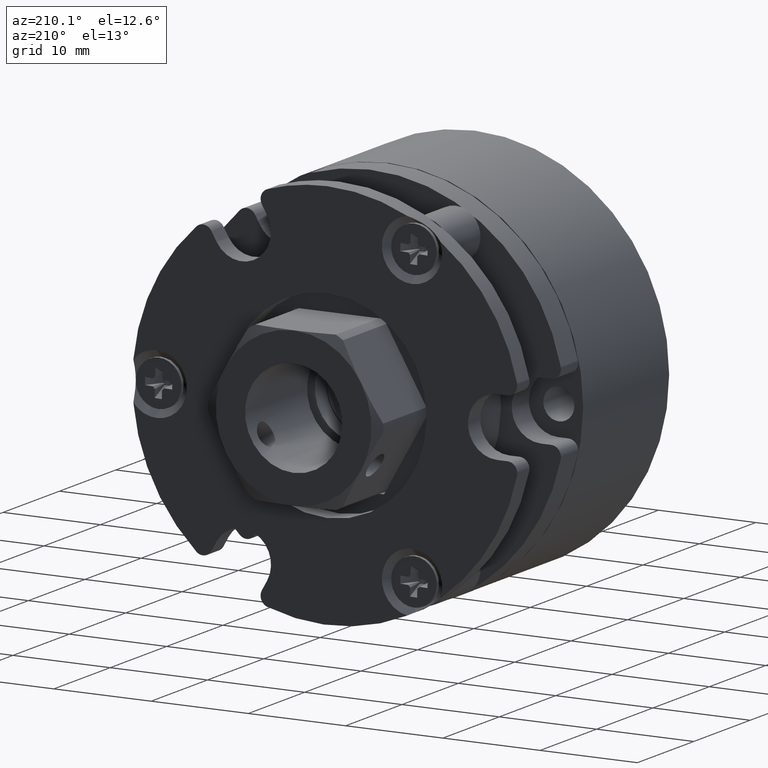
[diagram: clean part render]
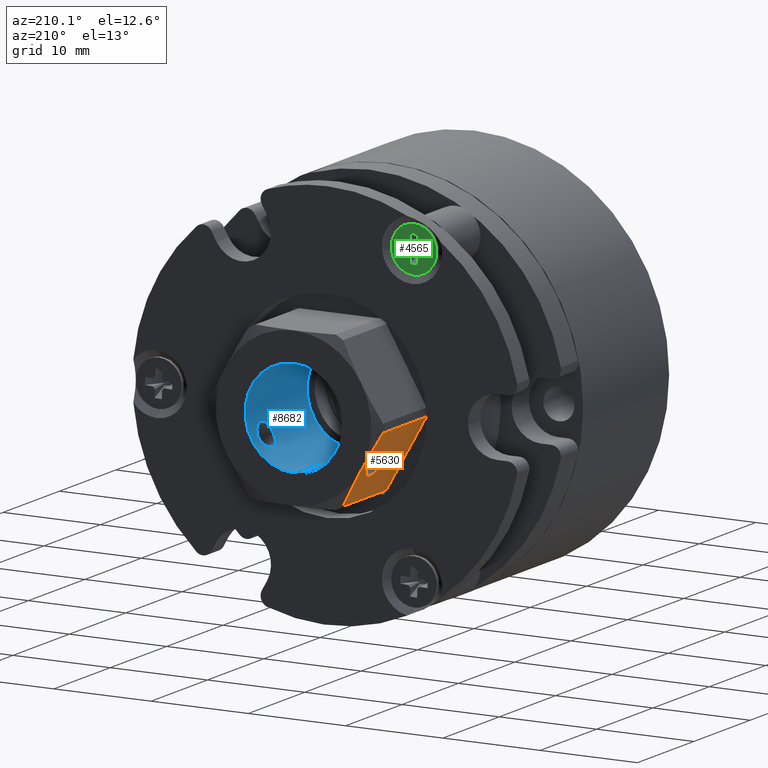
[diagram: same view with three faces highlighted in distinct colors, each labeled with its STEP entity id]
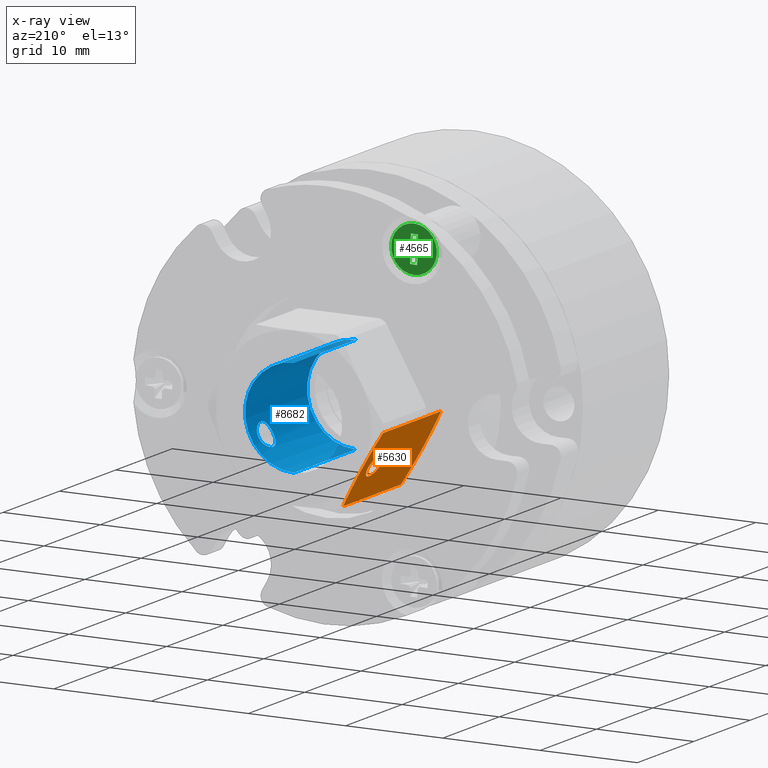
[diagram: x-ray of the same camera — body ghosted, the three highlighted faces saturated]
A machine part, auxiliary view with three faces highlighted in distinct colors.
The next image is the same camera in x-ray (body ghosted, the three faces saturated) — at least one of them is partly hidden behind the body in this view.
Their STEP definitions:

[orange] entity #5630 — the highlighted planar face has unit normal (0.866, -0, 0.5).
#303 = CARTESIAN_POINT ( 'NONE',  ( -7.769732616054021435, -55.03216099891337620, -2.502149111223020306 ) ) ;
#496 = FACE_BOUND ( 'NONE', #5829, .T. ) ;
#529 = VERTEX_POINT ( 'NONE', #4935 ) ;
#665 = CARTESIAN_POINT ( 'NONE',  ( -7.077193387655221102, -55.03216099891337620, -3.701662241044264778 ) ) ;
#679 = VERTEX_POINT ( 'NONE', #8865 ) ;
#725 = B_SPLINE_CURVE_WITH_KNOTS ( 'NONE', 3,
 ( #8380, #9103, #4196, #5598 ),
 .UNSPECIFIED., .F., .F.,
 ( 4, 4 ),
 ( 1.226634733346699349E-18, 0.004139139322544211838 ),
 .UNSPECIFIED. ) ;
#788 = EDGE_CURVE ( 'NONE', #1032, #679, #8196, .T. ) ;
#1032 = VERTEX_POINT ( 'NONE', #3412 ) ;
#1099 = EDGE_CURVE ( 'NONE', #529, #1182, #1279, .T. ) ;
#1166 = AXIS2_PLACEMENT_3D ( 'NONE', #9015, #4708, #4678 ) ;
#1182 = VERTEX_POINT ( 'NONE', #3492 ) ;
#1274 = DIRECTION ( 'NONE',  ( -8.247672735141258433E-17, -1.000000000000000000, -4.761796073821848323E-17 ) ) ;
#1279 = LINE ( 'NONE', #4019, #1513 ) ;
#1377 = CARTESIAN_POINT ( 'NONE',  ( -5.015640574846357502, -65.66819076464719274, -7.272376455315672672 ) ) ;
#1506 = VERTEX_POINT ( 'NONE', #1377 ) ;
#1513 = VECTOR ( 'NONE', #1274, 1000.000000000000000 ) ;
#1602 = EDGE_CURVE ( 'NONE', #4846, #3009, #3332, .T. ) ;
#1813 = ORIENTED_EDGE ( 'NONE', *, *, #3386, .F. ) ;
#1862 = EDGE_CURVE ( 'NONE', #3009, #4846, #6131, .T. ) ;
#1925 = CARTESIAN_POINT ( 'NONE',  ( -7.077193387655221990, -57.53216099891338331, -3.701662241044268331 ) ) ;
#1968 = B_SPLINE_CURVE_WITH_KNOTS ( 'NONE', 3,
 ( #7597, #303, #6204, #6901 ),
 .UNSPECIFIED., .F., .F.,
 ( 4, 4 ),
 ( 1.226634733346699349E-18, 0.004139139322544219644 ),
 .UNSPECIFIED. ) ;
#2170 = ORIENTED_EDGE ( 'NONE', *, *, #788, .F. ) ;
#2359 = EDGE_LOOP ( 'NONE', ( #7875, #2170, #3989, #1813, #3602, #4695 ) ) ;
#2377 = AXIS2_PLACEMENT_3D ( 'NONE', #3401, #2808, #7746 ) ;
#2808 = DIRECTION ( 'NONE',  ( 0.8660254037844339337, -9.523592147643536408E-17, 0.5000000000000083267 ) ) ;
#3009 = VERTEX_POINT ( 'NONE', #7183 ) ;
#3099 = ORIENTED_EDGE ( 'NONE', *, *, #1602, .T. ) ;
#3133 = CARTESIAN_POINT ( 'NONE',  ( -7.077193387655221102, -66.03216099891338331, -3.701662241044273660 ) ) ;
#3332 = CIRCLE ( 'NONE', #8806, 1.249999999999999112 ) ;
#3386 = EDGE_CURVE ( 'NONE', #7182, #1506, #725, .T. ) ;
#3401 = CARTESIAN_POINT ( 'NONE',  ( -7.077193387655221990, -57.53216099891338331, -3.701662241044268331 ) ) ;
#3412 = CARTESIAN_POINT ( 'NONE',  ( -5.015640574846354838, -55.39613123317957388, -7.272376455315672672 ) ) ;
#3492 = CARTESIAN_POINT ( 'NONE',  ( -9.138746200464087366, -65.66819076464719274, -0.1309480267728589664 ) ) ;
#3602 = ORIENTED_EDGE ( 'NONE', *, *, #7571, .F. ) ;
#3854 = CARTESIAN_POINT ( 'NONE',  ( -7.769732616054019658, -66.03216099891338331, -2.502149111223026967 ) ) ;
#3989 = ORIENTED_EDGE ( 'NONE', *, *, #6182, .F. ) ;
#4019 = CARTESIAN_POINT ( 'NONE',  ( -9.138746200464089142, -66.03216099891336910, -0.1309480267728531655 ) ) ;
#4085 = ORIENTED_EDGE ( 'NONE', *, *, #1862, .T. ) ;
#4196 = CARTESIAN_POINT ( 'NONE',  ( -5.698133930906195133, -65.89579285325491753, -6.090263286791861574 ) ) ;
#4678 = DIRECTION ( 'NONE',  ( 0.5000000000000082157, 0.0000000000000000000, -0.8660254037844338226 ) ) ;
#4695 = ORIENTED_EDGE ( 'NONE', *, *, #1099, .F. ) ;
#4708 = DIRECTION ( 'NONE',  ( 0.8660254037844339337, -9.523592147643538873E-17, 0.5000000000000083267 ) ) ;
#4846 = VERTEX_POINT ( 'NONE', #9208 ) ;
#4911 = CARTESIAN_POINT ( 'NONE',  ( -5.015640574846354838, -55.39613123317957388, -7.272376455315672672 ) ) ;
#4935 = CARTESIAN_POINT ( 'NONE',  ( -9.138746200464085589, -55.39613123317957388, -0.1309480267728561631 ) ) ;
#5598 = CARTESIAN_POINT ( 'NONE',  ( -5.015640574846357502, -65.66819076464719274, -7.272376455315672672 ) ) ;
#5630 = ADVANCED_FACE ( 'NONE', ( #496, #6946 ), #6195, .F. ) ;
#5829 = EDGE_LOOP ( 'NONE', ( #3099, #4085 ) ) ;
#5983 = EDGE_CURVE ( 'NONE', #679, #529, #1968, .T. ) ;
#6131 = CIRCLE ( 'NONE', #2377, 1.249999999999999112 ) ;
#6182 = EDGE_CURVE ( 'NONE', #1506, #1032, #8631, .T. ) ;
#6195 = PLANE ( 'NONE',  #1166 ) ;
#6204 = CARTESIAN_POINT ( 'NONE',  ( -8.456252844404248847, -55.16852914457185619, -1.313061195296668426 ) ) ;
#6452 = CARTESIAN_POINT ( 'NONE',  ( -6.384654159256421657, -55.03216099891337620, -4.901175370865505698 ) ) ;
#6901 = CARTESIAN_POINT ( 'NONE',  ( -9.138746200464085589, -55.39613123317957388, -0.1309480267728561631 ) ) ;
#6946 = FACE_OUTER_BOUND ( 'NONE', #2359, .T. ) ;
#6950 = DIRECTION ( 'NONE',  ( -0.5000000000000084377, 0.0000000000000000000, 0.8660254037844337116 ) ) ;
#7182 = VERTEX_POINT ( 'NONE', #7694 ) ;
#7183 = CARTESIAN_POINT ( 'NONE',  ( -6.452193387655212220, -57.53216099891338331, -4.784193995774810304 ) ) ;
#7440 = CARTESIAN_POINT ( 'NONE',  ( -8.456252844404245295, -65.89579285325491753, -1.313061195296673533 ) ) ;
#7571 = EDGE_CURVE ( 'NONE', #1182, #7182, #7640, .T. ) ;
#7597 = CARTESIAN_POINT ( 'NONE',  ( -7.077193387655221102, -55.03216099891337620, -3.701662241044264778 ) ) ;
#7640 = B_SPLINE_CURVE_WITH_KNOTS ( 'NONE', 3,
 ( #8217, #7440, #3854, #3133 ),
 .UNSPECIFIED., .F., .F.,
 ( 4, 4 ),
 ( 5.724751741422973278E-18, 0.004139139322544219644 ),
 .UNSPECIFIED. ) ;
#7694 = CARTESIAN_POINT ( 'NONE',  ( -7.077193387655221102, -66.03216099891338331, -3.701662241044273660 ) ) ;
#7746 = DIRECTION ( 'NONE',  ( -0.5000000000000084377, 0.0000000000000000000, 0.8660254037844337116 ) ) ;
#7846 = VECTOR ( 'NONE', #9140, 1000.000000000000000 ) ;
#7875 = ORIENTED_EDGE ( 'NONE', *, *, #5983, .F. ) ;
#8196 = B_SPLINE_CURVE_WITH_KNOTS ( 'NONE', 3,
 ( #4911, #9330, #6452, #665 ),
 .UNSPECIFIED., .F., .F.,
 ( 4, 4 ),
 ( 7.757919228897728493E-18, 0.004139139322544211838 ),
 .UNSPECIFIED. ) ;
#8217 = CARTESIAN_POINT ( 'NONE',  ( -9.138746200464087366, -65.66819076464719274, -0.1309480267728589664 ) ) ;
#8380 = CARTESIAN_POINT ( 'NONE',  ( -7.077193387655221102, -66.03216099891338331, -3.701662241044273660 ) ) ;
#8414 = DIRECTION ( 'NONE',  ( 0.8660254037844339337, -9.523592147643536408E-17, 0.5000000000000083267 ) ) ;
#8631 = LINE ( 'NONE', #9242, #7846 ) ;
#8806 = AXIS2_PLACEMENT_3D ( 'NONE', #1925, #8414, #6950 ) ;
#8865 = CARTESIAN_POINT ( 'NONE',  ( -7.077193387655221102, -55.03216099891337620, -3.701662241044264778 ) ) ;
#9015 = CARTESIAN_POINT ( 'NONE',  ( -9.386594464413763106, -66.03216099891336910, 0.2983377589557112963 ) ) ;
#9103 = CARTESIAN_POINT ( 'NONE',  ( -6.384654159256418104, -66.03216099891338331, -4.901175370865514580 ) ) ;
#9140 = DIRECTION ( 'NONE',  ( 8.247672735141258433E-17, 1.000000000000000000, 4.761796073821848323E-17 ) ) ;
#9208 = CARTESIAN_POINT ( 'NONE',  ( -7.702193387655231760, -57.53216099891338331, -2.619130486313726802 ) ) ;
#9242 = CARTESIAN_POINT ( 'NONE',  ( -5.015640574846357502, -66.03216099891336910, -7.272376455315670896 ) ) ;
#9330 = CARTESIAN_POINT ( 'NONE',  ( -5.698133930906196909, -55.16852914457185619, -6.090263286791859798 ) ) ;

[blue] entity #8682 — the highlighted cylindrical surface (partial cylindrical patch) has radius 5 mm, axis along (0, 1, 0).
#28 = VERTEX_POINT ( 'NONE', #1981 ) ;
#269 = CARTESIAN_POINT ( 'NONE',  ( -0.1489901573797468848, -55.03216099891337620, -4.701662241044200385 ) ) ;
#340 = CARTESIAN_POINT ( 'NONE',  ( 3.833512073583919655, -56.44024194371763059, -2.728693520177665643 ) ) ;
#717 = EDGE_CURVE ( 'NONE', #7573, #1543, #3129, .T. ) ;
#750 = CYLINDRICAL_SURFACE ( 'NONE', #5206, 5.000000000000000888 ) ;
#922 = CARTESIAN_POINT ( 'NONE',  ( 4.668637300432377124, -57.53216099891338331, -1.039745077693220443 ) ) ;
#957 = CARTESIAN_POINT ( 'NONE',  ( 4.668637300432376236, -57.69800793597820388, -1.039745077693220443 ) ) ;
#996 = CARTESIAN_POINT ( 'NONE',  ( 4.008804740193245841, -58.74880872818754085, -2.482942982946497956 ) ) ;
#1023 = CARTESIAN_POINT ( 'NONE',  ( 3.418637300432410431, -57.69800361150146983, -3.204808587154334365 ) ) ;
#1030 = CARTESIAN_POINT ( 'NONE',  ( -0.1489901573797477452, -66.03216099891336910, 0.2983377589557983933 ) ) ;
#1049 = CARTESIAN_POINT ( 'NONE',  ( 4.515352171760127931, -56.53350929888434706, -1.506519511415709278 ) ) ;
#1051 = B_SPLINE_CURVE_WITH_KNOTS ( 'NONE', 3,
 ( #3108, #1023, #4591, #5334, #1624, #7442, #8128, #996, #3826, #1724, #6633, #5993, #6049, #1693, #6759, #8871, #2476, #7474, #4549, #3176, #957, #922 ),
 .UNSPECIFIED., .F., .F.,
 ( 4, 2, 2, 2, 2, 2, 2, 2, 2, 2, 4 ),
 ( 0.0000000000000000000, 0.0004903067183709342762, 0.0009806134367418685525, 0.001470920155112802937, 0.001961226873483737972, 0.002206380232669206357, 0.002451533591854673875, 0.002941840310225602838, 0.003186993669411059514, 0.003432147028596517057, 0.003922453746967449924 ),
 .UNSPECIFIED. ) ;
#1096 = CARTESIAN_POINT ( 'NONE',  ( 3.509268593781335710, -56.97665765597903942, -3.110207681554085113 ) ) ;
#1109 = VERTEX_POINT ( 'NONE', #5836 ) ;
#1258 = CARTESIAN_POINT ( 'NONE',  ( -0.1489901573797471068, -66.03216099891336910, -4.701662241044202162 ) ) ;
#1301 = EDGE_CURVE ( 'NONE', #1109, #7573, #7007, .T. ) ;
#1543 = VERTEX_POINT ( 'NONE', #2925 ) ;
#1624 = CARTESIAN_POINT ( 'NONE',  ( 3.595748012083207268, -58.30124802483962299, -3.016859847822134455 ) ) ;
#1693 = CARTESIAN_POINT ( 'NONE',  ( 4.463746943881823803, -58.62408005410913603, -1.637094704120073629 ) ) ;
#1724 = CARTESIAN_POINT ( 'NONE',  ( 4.221533074407971320, -58.78223335476830869, -2.131730125841725165 ) ) ;
#1788 = CARTESIAN_POINT ( 'NONE',  ( 4.338567068950630379, -56.31551326963921156, -1.911777875116455139 ) ) ;
#1820 = CARTESIAN_POINT ( 'NONE',  ( 4.463706915890180760, -56.44047508080282682, -1.637070902233784153 ) ) ;
#1893 = CIRCLE ( 'NONE', #4081, 5.000000000000000888 ) ;
#1899 = LINE ( 'NONE', #5404, #9343 ) ;
#1939 = CARTESIAN_POINT ( 'NONE',  ( -0.1489901573797477452, -66.03216099891336910, 5.298337758955799615 ) ) ;
#1981 = CARTESIAN_POINT ( 'NONE',  ( 3.418637300432409987, -57.53216099891338331, -3.204808587154333921 ) ) ;
#2107 = VERTEX_POINT ( 'NONE', #7365 ) ;
#2476 = CARTESIAN_POINT ( 'NONE',  ( 4.591549386708510205, -58.29583579918249114, -1.292079204095370359 ) ) ;
#2525 = CARTESIAN_POINT ( 'NONE',  ( 3.536713566558428834, -56.90349438066598253, -3.080675313640053758 ) ) ;
#2603 = CARTESIAN_POINT ( 'NONE',  ( 4.668637300432378012, -57.36631838632530389, -1.039745077693220221 ) ) ;
#2925 = CARTESIAN_POINT ( 'NONE',  ( -0.1489901573797473011, -55.03216099891337620, 5.298337758955801391 ) ) ;
#3108 = CARTESIAN_POINT ( 'NONE',  ( 3.418637300432409987, -57.53216099891338331, -3.204808587154333921 ) ) ;
#3129 = CIRCLE ( 'NONE', #5568, 5.000000000000000888 ) ;
#3176 = CARTESIAN_POINT ( 'NONE',  ( 4.659741808813557817, -57.86147212124208039, -1.072885534012959274 ) ) ;
#3249 = CARTESIAN_POINT ( 'NONE',  ( 3.418637300432408210, -57.36632271068928191, -3.204808587154333477 ) ) ;
#3263 = CARTESIAN_POINT ( 'NONE',  ( 4.263534673478670989, -56.28230719513395997, -2.058871946254948959 ) ) ;
#3284 = CARTESIAN_POINT ( 'NONE',  ( -0.1489901573797477452, -66.03216099891336910, 0.2983377589557983933 ) ) ;
#3379 = B_SPLINE_CURVE_WITH_KNOTS ( 'NONE', 3,
 ( #5460, #2603, #3944, #7540, #5397, #1049, #1820, #1788, #3263, #8279, #3978, #8989, #4686, #340, #5000, #4292, #8942, #2525, #1096, #7518, #3249, #6903 ),
 .UNSPECIFIED., .F., .F.,
 ( 4, 2, 2, 2, 2, 2, 2, 2, 2, 2, 4 ),
 ( 0.003922453746967449924, 0.004412747680537816922, 0.004903041614108183052, 0.005393335547678550050, 0.005883629481248917048, 0.006128776448034101848, 0.006373923414819286648, 0.006864217348389646707, 0.007109364315174819364, 0.007354511281959992021, 0.007844805215530357284 ),
 .UNSPECIFIED. ) ;
#3550 = EDGE_CURVE ( 'NONE', #5467, #1543, #1899, .T. ) ;
#3826 = CARTESIAN_POINT ( 'NONE',  ( 4.098675744809272992, -58.78201480269282797, -2.344415986791730244 ) ) ;
#3866 = DIRECTION ( 'NONE',  ( 3.926395388688756837E-17, 1.000000000000000000, 1.224646799147382543E-16 ) ) ;
#3944 = CARTESIAN_POINT ( 'NONE',  ( 4.659818757235917097, -57.20364648460390811, -1.072620376747383641 ) ) ;
#3978 = CARTESIAN_POINT ( 'NONE',  ( 4.097391360742047794, -56.29025901359984374, -2.342628893455985573 ) ) ;
#4081 = AXIS2_PLACEMENT_3D ( 'NONE', #3284, #5325, #4740 ) ;
#4200 = DIRECTION ( 'NONE',  ( 3.926395388688756837E-17, 1.000000000000000000, 1.224646799147382543E-16 ) ) ;
#4274 = ORIENTED_EDGE ( 'NONE', *, *, #717, .F. ) ;
#4292 = CARTESIAN_POINT ( 'NONE',  ( 3.633280873774356934, -56.70577326558422726, -2.972424925683956332 ) ) ;
#4549 = CARTESIAN_POINT ( 'NONE',  ( 4.632026159636013496, -58.08766434184773431, -1.165534532911354226 ) ) ;
#4591 = CARTESIAN_POINT ( 'NONE',  ( 3.442698872972095536, -57.86067551322284430, -3.180733855194746607 ) ) ;
#4608 = ORIENTED_EDGE ( 'NONE', *, *, #1301, .F. ) ;
#4624 = DIRECTION ( 'NONE',  ( 0.0000000000000000000, 0.0000000000000000000, 1.000000000000000000 ) ) ;
#4686 = CARTESIAN_POINT ( 'NONE',  ( 3.966280260297170290, -56.34592452821959085, -2.542500143057266015 ) ) ;
#4740 = DIRECTION ( 'NONE',  ( 0.0000000000000000000, 0.0000000000000000000, 1.000000000000000000 ) ) ;
#5000 = CARTESIAN_POINT ( 'NONE',  ( 3.747173600849273090, -56.53216418526368159, -2.837544690757556332 ) ) ;
#5206 = AXIS2_PLACEMENT_3D ( 'NONE', #1030, #5309, #8958 ) ;
#5309 = DIRECTION ( 'NONE',  ( 3.926395388688756837E-17, 1.000000000000000000, 1.224646799147382543E-16 ) ) ;
#5325 = DIRECTION ( 'NONE',  ( 3.926395388688756837E-17, 1.000000000000000000, 1.224646799147382543E-16 ) ) ;
#5334 = CARTESIAN_POINT ( 'NONE',  ( 3.531344641038434595, -58.16303570998944394, -3.086821788050817972 ) ) ;
#5397 = CARTESIAN_POINT ( 'NONE',  ( 4.594424273386836788, -56.76307397298712942, -1.287101822931253858 ) ) ;
#5404 = CARTESIAN_POINT ( 'NONE',  ( -0.1489901573797477452, -66.03216099891336910, 5.298337758955799615 ) ) ;
#5460 = CARTESIAN_POINT ( 'NONE',  ( 4.668637300432377124, -57.53216099891338331, -1.039745077693220443 ) ) ;
#5467 = VERTEX_POINT ( 'NONE', #1939 ) ;
#5562 = EDGE_CURVE ( 'NONE', #2107, #28, #3379, .T. ) ;
#5568 = AXIS2_PLACEMENT_3D ( 'NONE', #6046, #7469, #4624 ) ;
#5628 = EDGE_LOOP ( 'NONE', ( #4608, #6612, #8911, #4274 ) ) ;
#5653 = EDGE_CURVE ( 'NONE', #5467, #1109, #1893, .T. ) ;
#5689 = VECTOR ( 'NONE', #4200, 1000.000000000000000 ) ;
#5836 = CARTESIAN_POINT ( 'NONE',  ( -0.1489901573797468848, -66.03216099891336910, -4.701662241044202162 ) ) ;
#5926 = EDGE_CURVE ( 'NONE', #28, #2107, #1051, .T. ) ;
#5993 = CARTESIAN_POINT ( 'NONE',  ( 4.334827717231414468, -58.74207328917916016, -1.915671754103011937 ) ) ;
#6046 = CARTESIAN_POINT ( 'NONE',  ( -0.1489901573797473011, -55.03216099891337620, 0.2983377589557997811 ) ) ;
#6049 = CARTESIAN_POINT ( 'NONE',  ( 4.368882842635774644, -58.71839746960716866, -1.845172015188347059 ) ) ;
#6086 = FACE_BOUND ( 'NONE', #7733, .T. ) ;
#6612 = ORIENTED_EDGE ( 'NONE', *, *, #5653, .F. ) ;
#6633 = CARTESIAN_POINT ( 'NONE',  ( 4.261344813217370131, -58.77406298422692288, -2.058653183692388033 ) ) ;
#6759 = CARTESIAN_POINT ( 'NONE',  ( 4.514845586468354988, -58.53215781256309214, -1.507897808117973026 ) ) ;
#6903 = CARTESIAN_POINT ( 'NONE',  ( 3.418637300432409987, -57.53216099891338331, -3.204808587154333921 ) ) ;
#7007 = LINE ( 'NONE', #1258, #5689 ) ;
#7365 = CARTESIAN_POINT ( 'NONE',  ( 4.668637300432377124, -57.53216099891338331, -1.039745077693220443 ) ) ;
#7442 = CARTESIAN_POINT ( 'NONE',  ( 3.746233253537045726, -58.53081269894240535, -2.838672554840544926 ) ) ;
#7469 = DIRECTION ( 'NONE',  ( -3.926395388688756837E-17, -1.000000000000000000, -1.224646799147382543E-16 ) ) ;
#7474 = CARTESIAN_POINT ( 'NONE',  ( 4.620172865177103461, -58.16082761716074856, -1.204068760499504620 ) ) ;
#7518 = CARTESIAN_POINT ( 'NONE',  ( 3.442890031688901509, -57.20284987658466491, -3.180534637273413345 ) ) ;
#7540 = CARTESIAN_POINT ( 'NONE',  ( 4.622811405400536700, -56.90128628783730846, -1.196345897402782743 ) ) ;
#7573 = VERTEX_POINT ( 'NONE', #269 ) ;
#7733 = EDGE_LOOP ( 'NONE', ( #8821, #9121 ) ) ;
#8128 = CARTESIAN_POINT ( 'NONE',  ( 3.833471446549912454, -58.62384691702393269, -2.728670755863181974 ) ) ;
#8279 = CARTESIAN_POINT ( 'NONE',  ( 4.140771979669557012, -56.28208864305848635, -2.271612445203545771 ) ) ;
#8682 = ADVANCED_FACE ( 'NONE', ( #9351, #6086 ), #750, .F. ) ;
#8821 = ORIENTED_EDGE ( 'NONE', *, *, #5926, .F. ) ;
#8871 = CARTESIAN_POINT ( 'NONE',  ( 4.574708932845569009, -58.35854873224254646, -1.341823695701606090 ) ) ;
#8911 = ORIENTED_EDGE ( 'NONE', *, *, #3550, .T. ) ;
#8942 = CARTESIAN_POINT ( 'NONE',  ( 3.598621107276485542, -56.76848619864428969, -3.011881432343641141 ) ) ;
#8958 = DIRECTION ( 'NONE',  ( 0.0000000000000000000, 0.0000000000000000000, 1.000000000000000000 ) ) ;
#8989 = CARTESIAN_POINT ( 'NONE',  ( 4.010307262455257593, -56.32224870864762067, -2.477757669870690904 ) ) ;
#9121 = ORIENTED_EDGE ( 'NONE', *, *, #5562, .F. ) ;
#9343 = VECTOR ( 'NONE', #3866, 1000.000000000000000 ) ;
#9351 = FACE_OUTER_BOUND ( 'NONE', #5628, .T. ) ;

[green] entity #4565 — the highlighted planar face has unit normal (-0, 1, 0).
#9 = CARTESIAN_POINT ( 'NONE',  ( -8.898990157379934374, -61.28216099892824786, 15.45378232518347872 ) ) ;
#75 = VERTEX_POINT ( 'NONE', #3516 ) ;
#129 = CARTESIAN_POINT ( 'NONE',  ( -8.898990157379937926, -61.28216099891351831, 17.80378232518346238 ) ) ;
#280 = VERTEX_POINT ( 'NONE', #129 ) ;
#324 = EDGE_CURVE ( 'NONE', #1840, #3860, #7835, .T. ) ;
#369 = VECTOR ( 'NONE', #5775, 1000.000000000000227 ) ;
#410 = VECTOR ( 'NONE', #5004, 1000.000000000000114 ) ;
#468 = DIRECTION ( 'NONE',  ( 6.123233995736844922E-17, -1.000000000000000000, -6.123233995736884365E-17 ) ) ;
#563 = CARTESIAN_POINT ( 'NONE',  ( -8.319172162022548278, -61.28216099892276958, 15.10434841753678015 ) ) ;
#671 = VERTEX_POINT ( 'NONE', #1557 ) ;
#747 = DIRECTION ( 'NONE',  ( -0.9993569140174439758, -0.0000000000000000000, -0.03585747349620471702 ) ) ;
#775 = ORIENTED_EDGE ( 'NONE', *, *, #8372, .F. ) ;
#805 = LINE ( 'NONE', #3825, #5355 ) ;
#822 = EDGE_CURVE ( 'NONE', #7427, #2712, #5814, .T. ) ;
#823 = CIRCLE ( 'NONE', #6768, 0.6769733846710545011 ) ;
#842 = FACE_OUTER_BOUND ( 'NONE', #1755, .T. ) ;
#853 = CIRCLE ( 'NONE', #9382, 2.349999999999997868 ) ;
#871 = CARTESIAN_POINT ( 'NONE',  ( -7.486623212561868357, -61.28216099891353252, 15.13422072989173195 ) ) ;
#936 = DIRECTION ( 'NONE',  ( 0.03585747349621664498, 2.813065096178798982E-14, -0.9993569140174436427 ) ) ;
#1038 = DIRECTION ( 'NONE',  ( -0.03585747349620835994, -0.0000000000000000000, 0.9993569140174438648 ) ) ;
#1198 = LINE ( 'NONE', #2915, #4481 ) ;
#1225 = ORIENTED_EDGE ( 'NONE', *, *, #2622, .F. ) ;
#1248 = CARTESIAN_POINT ( 'NONE',  ( -8.898990157379937926, -61.28216099891351831, 15.45378232518346273 ) ) ;
#1351 = ORIENTED_EDGE ( 'NONE', *, *, #5480, .F. ) ;
#1363 = EDGE_CURVE ( 'NONE', #671, #6714, #9053, .T. ) ;
#1468 = CARTESIAN_POINT ( 'NONE',  ( -9.289080366106171383, -61.28216099892087954, 16.00706579015383113 ) ) ;
#1557 = CARTESIAN_POINT ( 'NONE',  ( -8.345706692409562422, -61.28216099892087954, 15.84387253390968908 ) ) ;
#1592 = EDGE_CURVE ( 'NONE', #6415, #7318, #805, .T. ) ;
#1730 = CARTESIAN_POINT ( 'NONE',  ( -8.348614558983317835, -61.28216099891351831, 15.10329200820605955 ) ) ;
#1755 = EDGE_LOOP ( 'NONE', ( #4526, #9378 ) ) ;
#1840 = VERTEX_POINT ( 'NONE', #871 ) ;
#1937 = EDGE_CURVE ( 'NONE', #7548, #7721, #5602, .T. ) ;
#2306 = CARTESIAN_POINT ( 'NONE',  ( -8.898990157379937926, -61.28216099891351831, 15.45378232518346273 ) ) ;
#2320 = AXIS2_PLACEMENT_3D ( 'NONE', #2306, #4396, #2981 ) ;
#2491 = EDGE_CURVE ( 'NONE', #6714, #1840, #6260, .T. ) ;
#2497 = DIRECTION ( 'NONE',  ( 0.0000000000000000000, -1.000000000000000000, -0.0000000000000000000 ) ) ;
#2572 = FACE_BOUND ( 'NONE', #7090, .T. ) ;
#2619 = AXIS2_PLACEMENT_3D ( 'NONE', #8794, #4390, #3678 ) ;
#2622 = EDGE_CURVE ( 'NONE', #4231, #6415, #4458, .T. ) ;
#2712 = VERTEX_POINT ( 'NONE', #9298 ) ;
#2820 = VECTOR ( 'NONE', #1038, 1000.000000000000114 ) ;
#2842 = EDGE_CURVE ( 'NONE', #6231, #4998, #823, .T. ) ;
#2882 = CARTESIAN_POINT ( 'NONE',  ( -9.218551752671702459, -61.28216099891351831, 14.04141538036545356 ) ) ;
#2915 = CARTESIAN_POINT ( 'NONE',  ( -8.348614558983317835, -61.28216099891351831, 15.10329200820605955 ) ) ;
#2981 = DIRECTION ( 'NONE',  ( 0.0000000000000000000, 0.0000000000000000000, 1.000000000000000000 ) ) ;
#3089 = ORIENTED_EDGE ( 'NONE', *, *, #4457, .T. ) ;
#3094 = CARTESIAN_POINT ( 'NONE',  ( -8.479027636298761550, -61.28216099891353252, 14.06794991075269330 ) ) ;
#3109 = DIRECTION ( 'NONE',  ( 0.03585747349620845709, -0.0000000000000000000, -0.9993569140174438648 ) ) ;
#3112 = CARTESIAN_POINT ( 'NONE',  ( -10.31135710219797552, -61.28216099891351831, 15.77334392047522549 ) ) ;
#3157 = CARTESIAN_POINT ( 'NONE',  ( -7.513157742949056583, -61.28216099891355384, 15.87374484626460536 ) ) ;
#3209 = ORIENTED_EDGE ( 'NONE', *, *, #2491, .F. ) ;
#3371 = DIRECTION ( 'NONE',  ( 0.03585747349620845709, -0.0000000000000000000, -0.9993569140174438648 ) ) ;
#3374 = ORIENTED_EDGE ( 'NONE', *, *, #822, .T. ) ;
#3516 = CARTESIAN_POINT ( 'NONE',  ( -8.549556249733219815, -61.28216099892276958, 16.03360032054085593 ) ) ;
#3523 = CARTESIAN_POINT ( 'NONE',  ( -8.898990157379937926, -61.28216099891351831, 13.10378232518346309 ) ) ;
#3579 = ORIENTED_EDGE ( 'NONE', *, *, #2842, .T. ) ;
#3615 = CARTESIAN_POINT ( 'NONE',  ( -8.508899948653676049, -61.28216099892087954, 14.90049886021314052 ) ) ;
#3668 = VECTOR ( 'NONE', #9305, 1000.000000000000114 ) ;
#3669 = DIRECTION ( 'NONE',  ( -2.562469242154504702E-15, 0.0000000000000000000, 1.000000000000000000 ) ) ;
#3678 = DIRECTION ( 'NONE',  ( -2.562469242154504702E-15, 0.0000000000000000000, 1.000000000000000000 ) ) ;
#3710 = EDGE_CURVE ( 'NONE', #6231, #8538, #1198, .T. ) ;
#3718 = ORIENTED_EDGE ( 'NONE', *, *, #3710, .F. ) ;
#3751 = EDGE_CURVE ( 'NONE', #7427, #75, #6287, .T. ) ;
#3825 = CARTESIAN_POINT ( 'NONE',  ( -8.479027636298789972, -61.28216099891355384, 14.06794991075264534 ) ) ;
#3849 = LINE ( 'NONE', #7475, #9226 ) ;
#3860 = VERTEX_POINT ( 'NONE', #563 ) ;
#3925 = DIRECTION ( 'NONE',  ( 2.562469242154504702E-15, 0.0000000000000000000, 1.000000000000000000 ) ) ;
#4027 = VECTOR ( 'NONE', #4663, 1000.000000000000114 ) ;
#4121 = CARTESIAN_POINT ( 'NONE',  ( -8.898990157379934374, -61.28216099892824786, 15.45378232518347872 ) ) ;
#4127 = CIRCLE ( 'NONE', #6595, 0.6769733846710545011 ) ;
#4171 = LINE ( 'NONE', #4266, #410 ) ;
#4224 = VECTOR ( 'NONE', #3109, 1000.000000000000114 ) ;
#4231 = VERTEX_POINT ( 'NONE', #3615 ) ;
#4244 = LINE ( 'NONE', #8066, #7628 ) ;
#4266 = CARTESIAN_POINT ( 'NONE',  ( -9.449365755776501175, -61.28216099891351831, 15.80427264216086769 ) ) ;
#4368 = VERTEX_POINT ( 'NONE', #3523 ) ;
#4372 = EDGE_CURVE ( 'NONE', #4368, #280, #853, .T. ) ;
#4386 = ORIENTED_EDGE ( 'NONE', *, *, #6296, .T. ) ;
#4390 = DIRECTION ( 'NONE',  ( 0.0000000000000000000, -1.000000000000000000, -0.0000000000000000000 ) ) ;
#4396 = DIRECTION ( 'NONE',  ( 6.123233995736844922E-17, -1.000000000000000000, -6.123233995736884365E-17 ) ) ;
#4457 = EDGE_CURVE ( 'NONE', #671, #75, #4127, .T. ) ;
#4458 = LINE ( 'NONE', #8684, #4224 ) ;
#4470 = VERTEX_POINT ( 'NONE', #3112 ) ;
#4481 = VECTOR ( 'NONE', #747, 1000.000000000000114 ) ;
#4500 = DIRECTION ( 'NONE',  ( -0.03585747349620835994, -0.0000000000000000000, 0.9993569140174438648 ) ) ;
#4526 = ORIENTED_EDGE ( 'NONE', *, *, #7399, .F. ) ;
#4565 = ADVANCED_FACE ( 'NONE', ( #2572, #842 ), #4946, .T. ) ;
#4599 = ORIENTED_EDGE ( 'NONE', *, *, #1592, .F. ) ;
#4612 = CARTESIAN_POINT ( 'NONE',  ( -8.898990157379934374, -61.28216099892824786, 15.45378232518347872 ) ) ;
#4637 = ORIENTED_EDGE ( 'NONE', *, *, #324, .F. ) ;
#4663 = DIRECTION ( 'NONE',  ( -0.9993569140174439758, -0.0000000000000000000, -0.03585747349620471702 ) ) ;
#4711 = VECTOR ( 'NONE', #3371, 1000.000000000000114 ) ;
#4881 = DIRECTION ( 'NONE',  ( -1.000000000000000000, -6.123233995736842457E-17, 0.0000000000000000000 ) ) ;
#4946 = PLANE ( 'NONE',  #7249 ) ;
#4998 = VERTEX_POINT ( 'NONE', #8194 ) ;
#5004 = DIRECTION ( 'NONE',  ( 0.9993569140174439758, -0.0000000000000000000, 0.03585747349620459906 ) ) ;
#5257 = VECTOR ( 'NONE', #936, 1000.000000000000114 ) ;
#5355 = VECTOR ( 'NONE', #6693, 1000.000000000000114 ) ;
#5379 = CARTESIAN_POINT ( 'NONE',  ( -9.249480474357346438, -61.28216099891351831, 14.90340672678687994 ) ) ;
#5480 = EDGE_CURVE ( 'NONE', #7548, #2712, #6291, .T. ) ;
#5602 = CIRCLE ( 'NONE', #8448, 0.6769733846710545011 ) ;
#5656 = DIRECTION ( 'NONE',  ( -0.03585747349620860280, 9.376883653928145071E-15, 0.9993569140174439758 ) ) ;
#5722 = CIRCLE ( 'NONE', #2619, 0.6769733846710545011 ) ;
#5775 = DIRECTION ( 'NONE',  ( -0.9993569140174468624, 0.0000000000000000000, -0.03585747349612331686 ) ) ;
#5814 = LINE ( 'NONE', #8558, #369 ) ;
#5866 = EDGE_CURVE ( 'NONE', #8538, #4470, #4244, .T. ) ;
#6231 = VERTEX_POINT ( 'NONE', #8667 ) ;
#6260 = LINE ( 'NONE', #3157, #5257 ) ;
#6287 = LINE ( 'NONE', #7411, #4711 ) ;
#6291 = LINE ( 'NONE', #5379, #2820 ) ;
#6296 = EDGE_CURVE ( 'NONE', #4231, #3860, #5722, .T. ) ;
#6386 = CIRCLE ( 'NONE', #2320, 2.349999999999997868 ) ;
#6415 = VERTEX_POINT ( 'NONE', #3094 ) ;
#6595 = AXIS2_PLACEMENT_3D ( 'NONE', #9, #7228, #3669 ) ;
#6693 = DIRECTION ( 'NONE',  ( -0.9993569140174433096, 3.750753461571466288E-14, -0.03585747349622465940 ) ) ;
#6714 = VERTEX_POINT ( 'NONE', #7844 ) ;
#6748 = ORIENTED_EDGE ( 'NONE', *, *, #1363, .F. ) ;
#6768 = AXIS2_PLACEMENT_3D ( 'NONE', #4121, #6972, #7700 ) ;
#6922 = CARTESIAN_POINT ( 'NONE',  ( -9.478808152737498105, -61.28216099892087954, 15.80321623283013821 ) ) ;
#6972 = DIRECTION ( 'NONE',  ( 0.0000000000000000000, -1.000000000000000000, -0.0000000000000000000 ) ) ;
#7090 = EDGE_LOOP ( 'NONE', ( #8919, #3374, #1351, #7613, #8832, #7218, #3718, #3579, #775, #4599, #1225, #4386, #4637, #3209, #6748, #3089 ) ) ;
#7131 = CARTESIAN_POINT ( 'NONE',  ( -10.28482257181078019, -61.28216099891351831, 15.03381980410234853 ) ) ;
#7218 = ORIENTED_EDGE ( 'NONE', *, *, #5866, .F. ) ;
#7228 = DIRECTION ( 'NONE',  ( 0.0000000000000000000, -1.000000000000000000, -0.0000000000000000000 ) ) ;
#7249 = AXIS2_PLACEMENT_3D ( 'NONE', #8611, #9329, #4881 ) ;
#7318 = VERTEX_POINT ( 'NONE', #2882 ) ;
#7320 = CARTESIAN_POINT ( 'NONE',  ( -8.579428562088157406, -61.28216099891351831, 16.86614927000150033 ) ) ;
#7382 = EDGE_CURVE ( 'NONE', #4470, #7721, #4171, .T. ) ;
#7399 = EDGE_CURVE ( 'NONE', #280, #4368, #6386, .T. ) ;
#7411 = CARTESIAN_POINT ( 'NONE',  ( -8.548499840402502770, -61.28216099891351831, 16.00415792358005973 ) ) ;
#7427 = VERTEX_POINT ( 'NONE', #7320 ) ;
#7475 = CARTESIAN_POINT ( 'NONE',  ( -9.249480474357346438, -61.28216099891351831, 14.90340672678687994 ) ) ;
#7548 = VERTEX_POINT ( 'NONE', #1468 ) ;
#7613 = ORIENTED_EDGE ( 'NONE', *, *, #1937, .T. ) ;
#7628 = VECTOR ( 'NONE', #5656, 999.9999999999998863 ) ;
#7700 = DIRECTION ( 'NONE',  ( 5.124938484309009404E-15, 0.0000000000000000000, 1.000000000000000000 ) ) ;
#7721 = VERTEX_POINT ( 'NONE', #6922 ) ;
#7804 = DIRECTION ( 'NONE',  ( 0.0000000000000000000, 0.0000000000000000000, 1.000000000000000000 ) ) ;
#7835 = LINE ( 'NONE', #1730, #4027 ) ;
#7844 = CARTESIAN_POINT ( 'NONE',  ( -7.513157742949101880, -61.28216099891353252, 15.87374484626459825 ) ) ;
#7921 = CARTESIAN_POINT ( 'NONE',  ( -9.449365755776501175, -61.28216099891351831, 15.80427264216086769 ) ) ;
#8066 = CARTESIAN_POINT ( 'NONE',  ( -10.28482257181078552, -61.28216099891352542, 15.03381980410236096 ) ) ;
#8194 = CARTESIAN_POINT ( 'NONE',  ( -9.248424065026620511, -61.28216099892087954, 14.87396432982593097 ) ) ;
#8372 = EDGE_CURVE ( 'NONE', #7318, #4998, #3849, .T. ) ;
#8448 = AXIS2_PLACEMENT_3D ( 'NONE', #4612, #2497, #3925 ) ;
#8538 = VERTEX_POINT ( 'NONE', #7131 ) ;
#8558 = CARTESIAN_POINT ( 'NONE',  ( -8.579428562088169841, -61.28216099891351831, 16.86614927000149677 ) ) ;
#8611 = CARTESIAN_POINT ( 'NONE',  ( -8.898990157379932597, -61.28216099891351831, 15.45378232518347694 ) ) ;
#8667 = CARTESIAN_POINT ( 'NONE',  ( -9.452273622350283233, -61.28216099892087954, 15.06369211645723993 ) ) ;
#8684 = CARTESIAN_POINT ( 'NONE',  ( -8.548499840402502770, -61.28216099891351831, 16.00415792358005973 ) ) ;
#8794 = CARTESIAN_POINT ( 'NONE',  ( -8.898990157379934374, -61.28216099892824786, 15.45378232518347872 ) ) ;
#8832 = ORIENTED_EDGE ( 'NONE', *, *, #7382, .F. ) ;
#8919 = ORIENTED_EDGE ( 'NONE', *, *, #3751, .F. ) ;
#9053 = LINE ( 'NONE', #7921, #3668 ) ;
#9226 = VECTOR ( 'NONE', #4500, 1000.000000000000114 ) ;
#9298 = CARTESIAN_POINT ( 'NONE',  ( -9.318952678461091210, -61.28216099891351121, 16.83961473961434763 ) ) ;
#9305 = DIRECTION ( 'NONE',  ( 0.9993569140174439758, -0.0000000000000000000, 0.03585747349620459906 ) ) ;
#9329 = DIRECTION ( 'NONE',  ( -6.123233995736842457E-17, 1.000000000000000000, 6.123233995736796851E-17 ) ) ;
#9378 = ORIENTED_EDGE ( 'NONE', *, *, #4372, .F. ) ;
#9382 = AXIS2_PLACEMENT_3D ( 'NONE', #1248, #468, #7804 ) ;